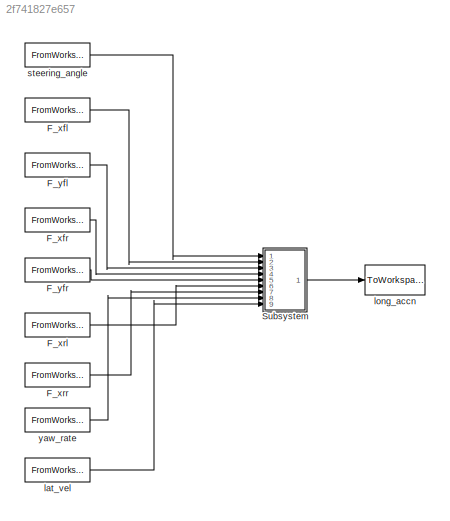
MODEL slx_2f741827e657
KIND model
CONFIG AbsTol = auto
CONFIG FixedStep = auto
CONFIG MaxStep = auto
CONFIG MinStep = auto
CONFIG RelTol = 1e-3
CONFIG SampleTimeConstraint = Unconstrained
CONFIG Solver = ode45
CONFIG SolverMode = Auto
CONFIG SolverName = ode45
CONFIG StartTime = 0.0
CONFIG StopTime = 10.0
BLOCK [FromWorkspace] F_xfl
  SampleTime = 0
  VariableName = F_xfl
  ZeroCross = on
BLOCK [FromWorkspace] F_xfr
  SampleTime = 0
  VariableName = F_xfr
  ZeroCross = on
BLOCK [FromWorkspace] F_xrl
  SampleTime = 0
  VariableName = F_xrl
  ZeroCross = on
BLOCK [FromWorkspace] F_xrr
  SampleTime = 0
  VariableName = F_xrr
  ZeroCross = on
BLOCK [FromWorkspace] F_yfl
  SampleTime = 0
  VariableName = F_yfl
  ZeroCross = on
BLOCK [FromWorkspace] F_yfr
  SampleTime = 0
  VariableName = F_yfr
  ZeroCross = on
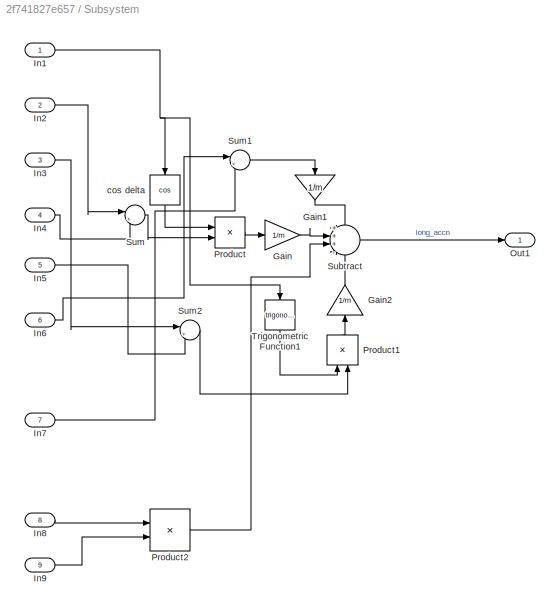
BLOCK [SubSystem] Subsystem
  Ports = [9, 1]
  RequestExecContextInheritance = off
BLOCK [Gain] Subsystem/Gain
  Gain = 1/m
  OutDataTypeStr = Inherit: Inherit via internal rule
  ParamDataTypeStr = Inherit: Inherit via internal rule
  SaturateOnIntegerOverflow = off
BLOCK [Gain] Subsystem/Gain1
  Gain = 1/m
  OutDataTypeStr = Inherit: Inherit via internal rule
  ParamDataTypeStr = Inherit: Inherit via internal rule
  SaturateOnIntegerOverflow = off
BLOCK [Gain] Subsystem/Gain2
  Gain = 1/m
  OutDataTypeStr = Inherit: Inherit via internal rule
  ParamDataTypeStr = Inherit: Inherit via internal rule
  SaturateOnIntegerOverflow = off
BLOCK [Inport] Subsystem/In1
  IconDisplay = Port number
BLOCK [Inport] Subsystem/In2
  IconDisplay = Port number
  Port = 2
BLOCK [Inport] Subsystem/In3
  IconDisplay = Port number
  Port = 3
BLOCK [Inport] Subsystem/In4
  IconDisplay = Port number
  Port = 4
BLOCK [Inport] Subsystem/In5
  IconDisplay = Port number
  Port = 5
BLOCK [Inport] Subsystem/In6
  IconDisplay = Port number
  Port = 6
BLOCK [Inport] Subsystem/In7
  IconDisplay = Port number
  Port = 7
BLOCK [Inport] Subsystem/In8
  IconDisplay = Port number
  Port = 8
BLOCK [Inport] Subsystem/In9
  IconDisplay = Port number
  Port = 9
BLOCK [Outport] Subsystem/Out1
  IconDisplay = Port number
BLOCK [Product] Subsystem/Product
  InputSameDT = off
  OutDataTypeStr = Inherit: Inherit via internal rule
  Ports = [2, 1]
  RndMeth = Floor
  SaturateOnIntegerOverflow = off
BLOCK [Product] Subsystem/Product1
  InputSameDT = off
  OutDataTypeStr = Inherit: Inherit via internal rule
  Ports = [2, 1]
  RndMeth = Floor
  SaturateOnIntegerOverflow = off
BLOCK [Product] Subsystem/Product2
  InputSameDT = off
  OutDataTypeStr = Inherit: Inherit via internal rule
  Ports = [2, 1]
  RndMeth = Floor
  SaturateOnIntegerOverflow = off
BLOCK [Sum] Subsystem/Subtract
  IconShape = round
  InputSameDT = off
  Inputs = +++-
  OutDataTypeStr = Inherit: Inherit via internal rule
  Ports = [4, 1]
  SaturateOnIntegerOverflow = off
BLOCK [Sum] Subsystem/Sum
  IconShape = round
  InputSameDT = off
  Inputs = |++
  OutDataTypeStr = Inherit: Inherit via internal rule
  Ports = [2, 1]
  SaturateOnIntegerOverflow = off
BLOCK [Sum] Subsystem/Sum1
  IconShape = round
  InputSameDT = off
  Inputs = |++
  OutDataTypeStr = Inherit: Inherit via internal rule
  Ports = [2, 1]
  SaturateOnIntegerOverflow = off
BLOCK [Sum] Subsystem/Sum2
  IconShape = round
  InputSameDT = off
  Inputs = |++
  OutDataTypeStr = Inherit: Inherit via internal rule
  Ports = [2, 1]
  SaturateOnIntegerOverflow = off
BLOCK [Trigonometry] Subsystem/Trigonometric Function1
  Ports = [1, 1]
BLOCK [Trigonometry] Subsystem/cos delta
  Operator = cos
  Ports = [1, 1]
BLOCK [FromWorkspace] lat_vel
  SampleTime = 0
  VariableName = lat_vel
  ZeroCross = on
BLOCK [ToWorkspace] long_accn
  FixptAsFi = on
  MaxDataPoints = inf
  Ports = [1]
  SampleTime = -1
  Save2DSignal = 3-D array (concatenate along third dimension)
  SaveFormat = Timeseries
  VariableName = long_accn
BLOCK [FromWorkspace] steering_angle
  SampleTime = 0
  VariableName = delta
  ZeroCross = on
BLOCK [FromWorkspace] yaw_rate
  SampleTime = 0
  VariableName = yaw_rate
  ZeroCross = on
LINE F_xfl:1 -> Subsystem:2
LINE F_xfr:1 -> Subsystem:4
LINE F_xrl:1 -> Subsystem:6
LINE F_xrr:1 -> Subsystem:7
LINE F_yfl:1 -> Subsystem:3
LINE F_yfr:1 -> Subsystem:5
LINE Subsystem/Gain1:1 -> Subsystem/Subtract:1
LINE Subsystem/Gain2:1 -> Subsystem/Subtract:4
LINE Subsystem/Gain:1 -> Subsystem/Subtract:2
NET Subsystem/In1:1 -> Subsystem/Trigonometric Function1:1, Subsystem/cos delta:1
LINE Subsystem/In2:1 -> Subsystem/Sum:1
LINE Subsystem/In3:1 -> Subsystem/Sum2:1
LINE Subsystem/In4:1 -> Subsystem/Sum:2
LINE Subsystem/In5:1 -> Subsystem/Sum2:2
LINE Subsystem/In6:1 -> Subsystem/Sum1:1
LINE Subsystem/In7:1 -> Subsystem/Sum1:2
LINE Subsystem/In8:1 -> Subsystem/Product2:1
LINE Subsystem/In9:1 -> Subsystem/Product2:2
LINE Subsystem/Product1:1 -> Subsystem/Gain2:1
LINE Subsystem/Product2:1 -> Subsystem/Subtract:3
LINE Subsystem/Product:1 -> Subsystem/Gain:1
LINE Subsystem/Subtract:1 -> Subsystem/Out1:1
LINE Subsystem/Sum1:1 -> Subsystem/Gain1:1
LINE Subsystem/Sum2:1 -> Subsystem/Product1:2
LINE Subsystem/Sum:1 -> Subsystem/Product:2
LINE Subsystem/Trigonometric Function1:1 -> Subsystem/Product1:1
LINE Subsystem/cos delta:1 -> Subsystem/Product:1
LINE Subsystem:1 -> long_accn:1
LINE lat_vel:1 -> Subsystem:9
LINE steering_angle:1 -> Subsystem:1
LINE yaw_rate:1 -> Subsystem:8
note: NET lines group one-source signal fan-out (src -> all destinations, sorted); 1:1 wires keep LINE
